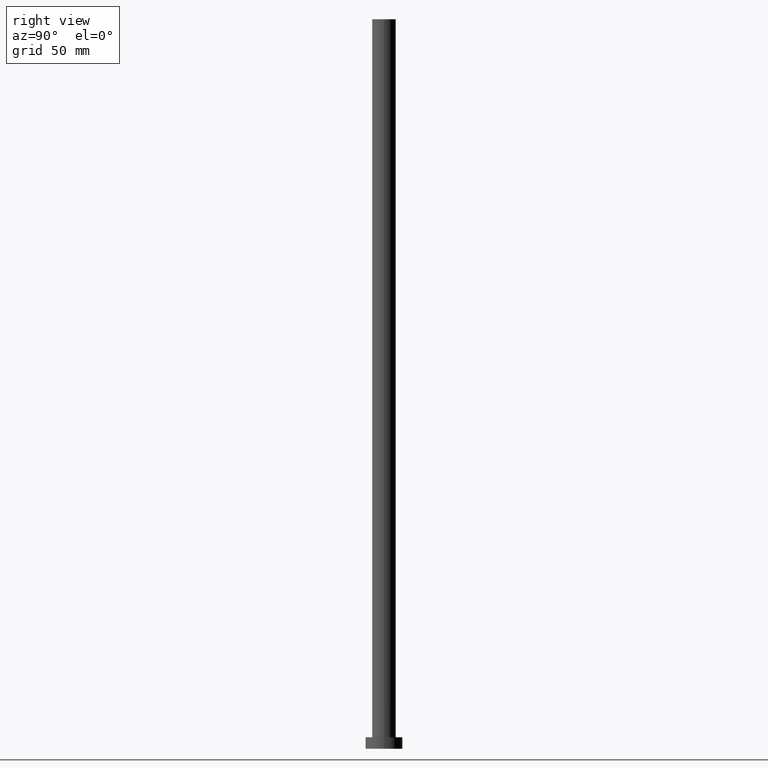
[diagram: clean part render]
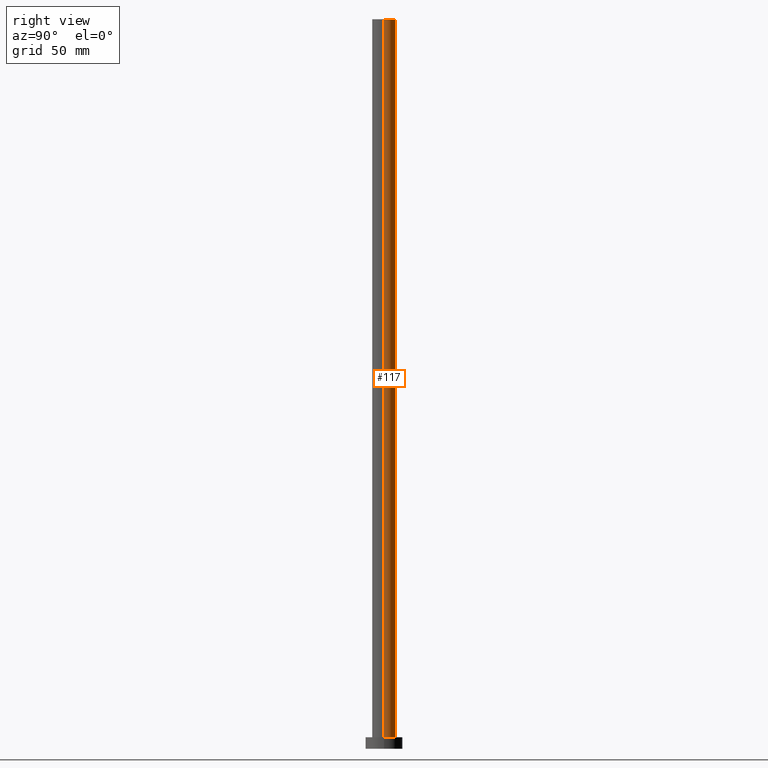
[diagram: same view with one face highlighted and labeled with its STEP entity id]
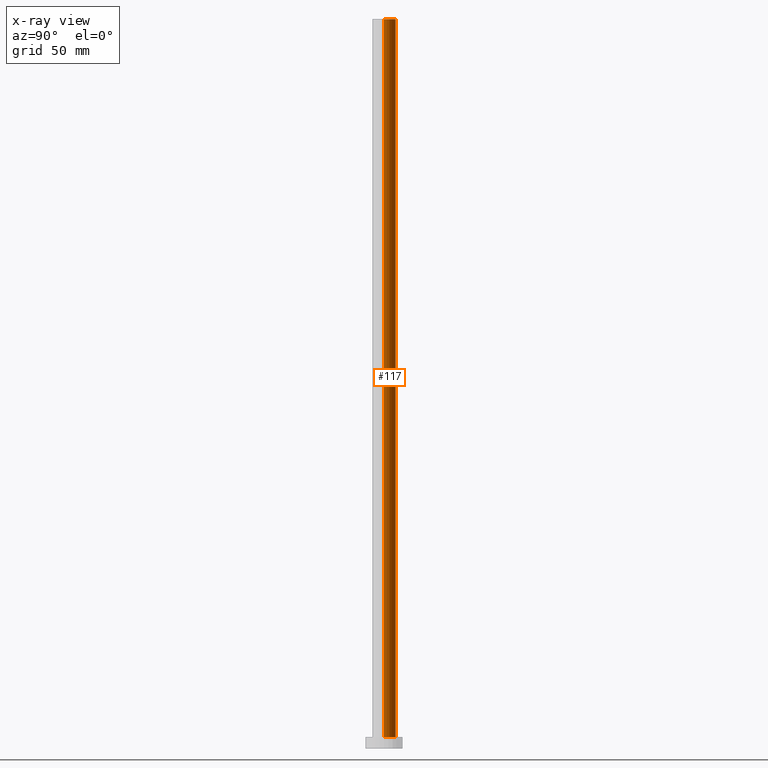
[diagram: x-ray of the same camera — body ghosted, the highlighted face saturated]
A machine part, right view. The second image highlights one B-rep face of the part: STEP entity #117.
The next image is the same camera in x-ray: the body ghosted, the highlighted face saturated — about 0% of this face is hidden behind the body in this view.
In plain terms, the highlighted cylindrical surface (edge-blend (fillet) strip) has radius 5.1 mm, axis along (-0, -0, -1).
Its self-contained STEP definition (entity closure, byte-faithful):
#1 = VERTEX_POINT ( 'NONE', #121 ) ;
#3 = LINE ( 'NONE', #246, #58 ) ;
#24 = ORIENTED_EDGE ( 'NONE', *, *, #30, .T. ) ;
#30 = EDGE_CURVE ( 'NONE', #135, #78, #3, .T. ) ;
#34 = EDGE_CURVE ( 'NONE', #1, #136, #184, .T. ) ;
#42 = CIRCLE ( 'NONE', #61, 5.099999999999999645 ) ;
#45 = DIRECTION ( 'NONE',  ( -1.000000000000000000, 0.000000000000000000, 0.000000000000000000 ) ) ;
#58 = VECTOR ( 'NONE', #105, 1000.000000000000000 ) ;
#60 = EDGE_LOOP ( 'NONE', ( #156, #24, #153, #134 ) ) ;
#61 = AXIS2_PLACEMENT_3D ( 'NONE', #249, #69, #108 ) ;
#62 = CARTESIAN_POINT ( 'NONE',  ( 5.099999999999999645, 6.245698675651500839E-16, 315.0000000000000000 ) ) ;
#68 = DIRECTION ( 'NONE',  ( 1.000000000000000000, 0.000000000000000000, 0.000000000000000000 ) ) ;
#69 = DIRECTION ( 'NONE',  ( 0.000000000000000000, 0.000000000000000000, 1.000000000000000000 ) ) ;
#78 = VERTEX_POINT ( 'NONE', #244 ) ;
#83 = AXIS2_PLACEMENT_3D ( 'NONE', #198, #245, #45 ) ;
#87 = CARTESIAN_POINT ( 'NONE',  ( -5.099999999999999645, 0.000000000000000000, 315.0000000000000000 ) ) ;
#89 = EDGE_CURVE ( 'NONE', #135, #1, #234, .T. ) ;
#101 = CYLINDRICAL_SURFACE ( 'NONE', #83, 5.099999999999999645 ) ;
#103 = FACE_OUTER_BOUND ( 'NONE', #60, .T. ) ;
#105 = DIRECTION ( 'NONE',  ( -0.000000000000000000, -0.000000000000000000, -1.000000000000000000 ) ) ;
#108 = DIRECTION ( 'NONE',  ( 1.000000000000000000, 0.000000000000000000, 0.000000000000000000 ) ) ;
#116 = DIRECTION ( 'NONE',  ( 0.000000000000000000, 0.000000000000000000, 1.000000000000000000 ) ) ;
#117 = ADVANCED_FACE ( 'NONE', ( #103 ), #101, .T. ) ;
#120 = CARTESIAN_POINT ( 'NONE',  ( -5.099999999999999645, 0.000000000000000000, 5.000000000000000000 ) ) ;
#121 = CARTESIAN_POINT ( 'NONE',  ( -5.099999999999999645, 0.000000000000000000, 315.0000000000000000 ) ) ;
#129 = VECTOR ( 'NONE', #247, 1000.000000000000000 ) ;
#134 = ORIENTED_EDGE ( 'NONE', *, *, #34, .F. ) ;
#135 = VERTEX_POINT ( 'NONE', #62 ) ;
#136 = VERTEX_POINT ( 'NONE', #120 ) ;
#150 = AXIS2_PLACEMENT_3D ( 'NONE', #181, #116, #68 ) ;
#153 = ORIENTED_EDGE ( 'NONE', *, *, #185, .T. ) ;
#156 = ORIENTED_EDGE ( 'NONE', *, *, #89, .F. ) ;
#181 = CARTESIAN_POINT ( 'NONE',  ( 0.000000000000000000, 0.000000000000000000, 315.0000000000000000 ) ) ;
#184 = LINE ( 'NONE', #87, #129 ) ;
#185 = EDGE_CURVE ( 'NONE', #78, #136, #42, .T. ) ;
#198 = CARTESIAN_POINT ( 'NONE',  ( 0.000000000000000000, 0.000000000000000000, 315.0000000000000000 ) ) ;
#234 = CIRCLE ( 'NONE', #150, 5.099999999999999645 ) ;
#244 = CARTESIAN_POINT ( 'NONE',  ( 5.099999999999999645, 6.245698675651500839E-16, 5.000000000000000000 ) ) ;
#245 = DIRECTION ( 'NONE',  ( -0.000000000000000000, -0.000000000000000000, -1.000000000000000000 ) ) ;
#246 = CARTESIAN_POINT ( 'NONE',  ( 5.099999999999999645, 6.245698675651500839E-16, 315.0000000000000000 ) ) ;
#247 = DIRECTION ( 'NONE',  ( -0.000000000000000000, -0.000000000000000000, -1.000000000000000000 ) ) ;
#249 = CARTESIAN_POINT ( 'NONE',  ( 0.000000000000000000, 0.000000000000000000, 5.000000000000000000 ) ) ;